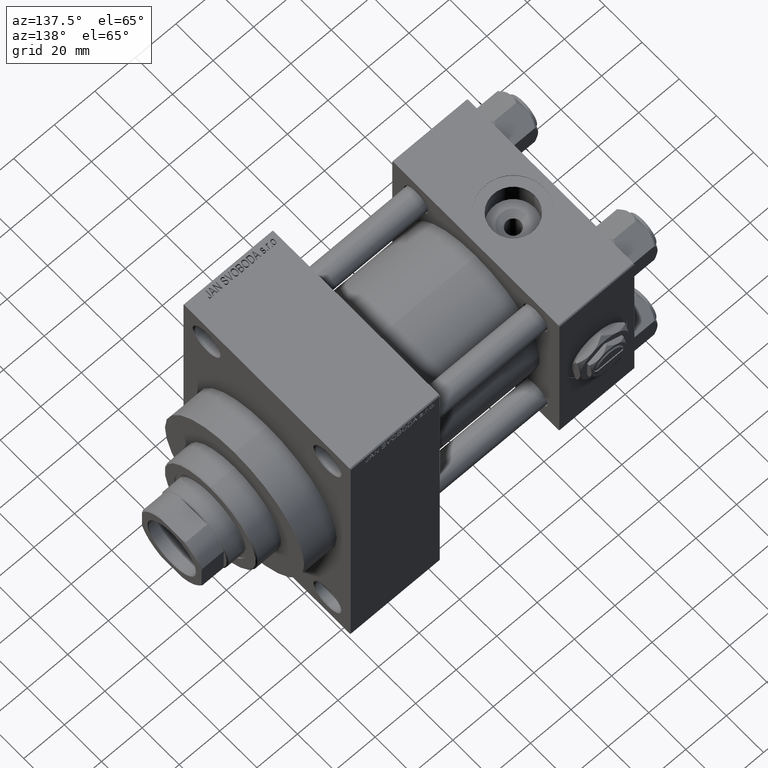
[diagram: clean part render]
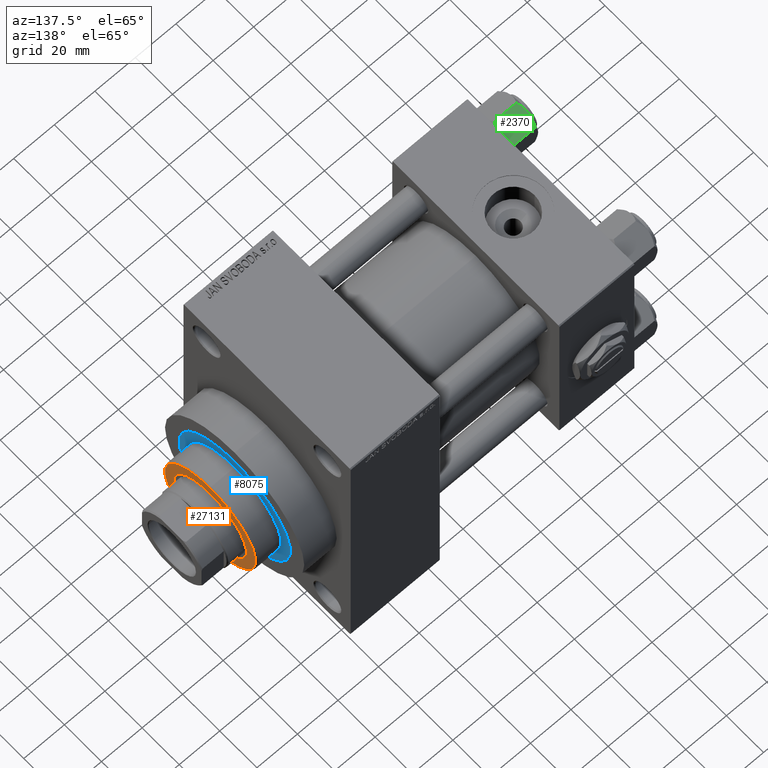
[diagram: same view with three faces highlighted in distinct colors, each labeled with its STEP entity id]
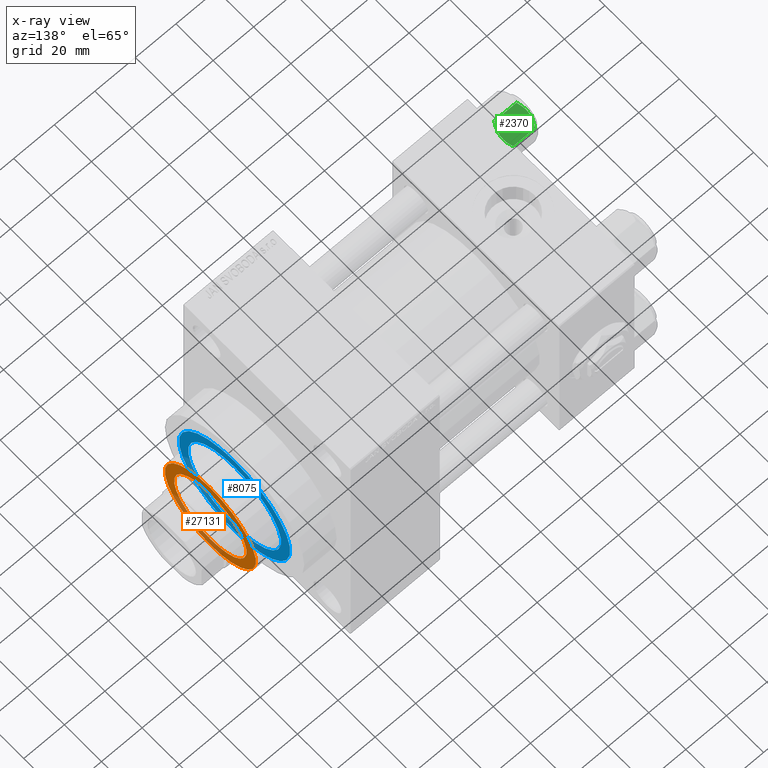
[diagram: x-ray of the same camera — body ghosted, the three highlighted faces saturated]
A machine part, auxiliary view with three faces highlighted in distinct colors.
The next image is the same camera in x-ray (body ghosted, the three faces saturated) — at least one of them is partly hidden behind the body in this view.
Their STEP definitions:

[orange] entity #27131 — the highlighted planar face has unit normal (1, 0, 0).
#3592 = CARTESIAN_POINT ( 'NONE',  ( 0.000000000000000000, 0.000000000000000000, 55.26000000000000512 ) ) ;
#3610 = AXIS2_PLACEMENT_3D ( 'NONE', #23858, #8519, #23610 ) ;
#3824 = CARTESIAN_POINT ( 'NONE',  ( -24.50000000000001066, 0.000000000000000000, 55.26000000000000512 ) ) ;
#4219 = AXIS2_PLACEMENT_3D ( 'NONE', #18906, #41692, #41938 ) ;
#6589 = CARTESIAN_POINT ( 'NONE',  ( -19.50000000000000000, 2.388061258337338939E-15, 55.26000000000000512 ) ) ;
#7252 = AXIS2_PLACEMENT_3D ( 'NONE', #3592, #7543, #41214 ) ;
#7543 = DIRECTION ( 'NONE',  ( 0.000000000000000000, 0.000000000000000000, 1.000000000000000000 ) ) ;
#8519 = DIRECTION ( 'NONE',  ( 0.000000000000000000, 0.000000000000000000, 1.000000000000000000 ) ) ;
#8767 = PLANE ( 'NONE',  #3610 ) ;
#10382 = CIRCLE ( 'NONE', #7252, 19.50000000000000000 ) ;
#12004 = CARTESIAN_POINT ( 'NONE',  ( 24.50000000000001066, 3.031000827889700044E-15, 55.26000000000000512 ) ) ;
#15473 = AXIS2_PLACEMENT_3D ( 'NONE', #19302, #34395, #30925 ) ;
#16102 = EDGE_CURVE ( 'NONE', #42776, #36290, #40468, .T. ) ;
#16723 = DIRECTION ( 'NONE',  ( 1.000000000000000000, 0.000000000000000000, 0.000000000000000000 ) ) ;
#17956 = EDGE_LOOP ( 'NONE', ( #47807, #36096 ) ) ;
#18906 = CARTESIAN_POINT ( 'NONE',  ( 0.000000000000000000, 0.000000000000000000, 55.26000000000000512 ) ) ;
#19269 = EDGE_CURVE ( 'NONE', #45240, #45416, #10382, .T. ) ;
#19302 = CARTESIAN_POINT ( 'NONE',  ( 0.000000000000000000, 0.000000000000000000, 55.26000000000000512 ) ) ;
#19723 = CARTESIAN_POINT ( 'NONE',  ( 19.50000000000000000, 0.000000000000000000, 55.26000000000000512 ) ) ;
#20192 = CARTESIAN_POINT ( 'NONE',  ( 0.000000000000000000, 0.000000000000000000, 55.26000000000000512 ) ) ;
#21484 = AXIS2_PLACEMENT_3D ( 'NONE', #20192, #43453, #16723 ) ;
#23192 = EDGE_CURVE ( 'NONE', #36290, #42776, #46882, .T. ) ;
#23375 = FACE_BOUND ( 'NONE', #17956, .T. ) ;
#23610 = DIRECTION ( 'NONE',  ( 1.000000000000000000, 0.000000000000000000, -0.000000000000000000 ) ) ;
#23858 = CARTESIAN_POINT ( 'NONE',  ( 0.000000000000000000, 0.000000000000000000, 55.26000000000000512 ) ) ;
#27131 = ADVANCED_FACE ( 'NONE', ( #23375, #34753 ), #8767, .T. ) ;
#27672 = EDGE_CURVE ( 'NONE', #45416, #45240, #45511, .T. ) ;
#30925 = DIRECTION ( 'NONE',  ( 1.000000000000000000, 0.000000000000000000, 0.000000000000000000 ) ) ;
#32969 = ORIENTED_EDGE ( 'NONE', *, *, #23192, .T. ) ;
#34395 = DIRECTION ( 'NONE',  ( 0.000000000000000000, 0.000000000000000000, 1.000000000000000000 ) ) ;
#34753 = FACE_OUTER_BOUND ( 'NONE', #45489, .T. ) ;
#35366 = ORIENTED_EDGE ( 'NONE', *, *, #16102, .T. ) ;
#36096 = ORIENTED_EDGE ( 'NONE', *, *, #27672, .F. ) ;
#36290 = VERTEX_POINT ( 'NONE', #3824 ) ;
#40468 = CIRCLE ( 'NONE', #21484, 24.50000000000001066 ) ;
#41214 = DIRECTION ( 'NONE',  ( 1.000000000000000000, 0.000000000000000000, 0.000000000000000000 ) ) ;
#41692 = DIRECTION ( 'NONE',  ( 0.000000000000000000, 0.000000000000000000, 1.000000000000000000 ) ) ;
#41938 = DIRECTION ( 'NONE',  ( 1.000000000000000000, 0.000000000000000000, 0.000000000000000000 ) ) ;
#42776 = VERTEX_POINT ( 'NONE', #12004 ) ;
#43453 = DIRECTION ( 'NONE',  ( 0.000000000000000000, 0.000000000000000000, 1.000000000000000000 ) ) ;
#45240 = VERTEX_POINT ( 'NONE', #19723 ) ;
#45416 = VERTEX_POINT ( 'NONE', #6589 ) ;
#45489 = EDGE_LOOP ( 'NONE', ( #32969, #35366 ) ) ;
#45511 = CIRCLE ( 'NONE', #15473, 19.50000000000000000 ) ;
#46882 = CIRCLE ( 'NONE', #4219, 24.50000000000001066 ) ;
#47807 = ORIENTED_EDGE ( 'NONE', *, *, #19269, .F. ) ;

[blue] entity #8075 — the highlighted planar face has unit normal (1, 0, 0).
#2538 = VERTEX_POINT ( 'NONE', #26071 ) ;
#3889 = AXIS2_PLACEMENT_3D ( 'NONE', #32152, #12867, #42847 ) ;
#5727 = ORIENTED_EDGE ( 'NONE', *, *, #39846, .T. ) ;
#6261 = DIRECTION ( 'NONE',  ( 0.000000000000000000, 0.000000000000000000, 1.000000000000000000 ) ) ;
#6754 = FACE_OUTER_BOUND ( 'NONE', #40812, .T. ) ;
#7439 = DIRECTION ( 'NONE',  ( 0.000000000000000000, 0.000000000000000000, 1.000000000000000000 ) ) ;
#8075 = ADVANCED_FACE ( 'NONE', ( #10204, #6754 ), #10707, .T. ) ;
#9388 = VERTEX_POINT ( 'NONE', #20098 ) ;
#10204 = FACE_BOUND ( 'NONE', #41166, .T. ) ;
#10707 = PLANE ( 'NONE',  #45346 ) ;
#11306 = CIRCLE ( 'NONE', #47665, 25.00000000000000000 ) ;
#12867 = DIRECTION ( 'NONE',  ( 0.000000000000000000, 0.000000000000000000, 1.000000000000000000 ) ) ;
#13865 = AXIS2_PLACEMENT_3D ( 'NONE', #18810, #7439, #29206 ) ;
#14792 = CIRCLE ( 'NONE', #40887, 25.00000000000000000 ) ;
#15181 = CARTESIAN_POINT ( 'NONE',  ( -25.00000000000000000, 0.000000000000000000, 43.25999999999999801 ) ) ;
#18810 = CARTESIAN_POINT ( 'NONE',  ( 0.000000000000000000, 0.000000000000000000, 43.25999999999999801 ) ) ;
#20098 = CARTESIAN_POINT ( 'NONE',  ( 30.00000000000000000, 3.673940397442059178E-15, 43.25999999999999801 ) ) ;
#20253 = CARTESIAN_POINT ( 'NONE',  ( 0.000000000000000000, 0.000000000000000000, 43.25999999999999801 ) ) ;
#21355 = DIRECTION ( 'NONE',  ( 1.000000000000000000, 0.000000000000000000, -0.000000000000000000 ) ) ;
#21624 = EDGE_CURVE ( 'NONE', #42336, #47977, #11306, .T. ) ;
#23271 = ORIENTED_EDGE ( 'NONE', *, *, #35024, .F. ) ;
#25297 = CARTESIAN_POINT ( 'NONE',  ( 0.000000000000000000, 0.000000000000000000, 43.25999999999999801 ) ) ;
#26071 = CARTESIAN_POINT ( 'NONE',  ( -30.00000000000000000, 0.000000000000000000, 43.25999999999999801 ) ) ;
#27423 = DIRECTION ( 'NONE',  ( 0.000000000000000000, 0.000000000000000000, 1.000000000000000000 ) ) ;
#27575 = EDGE_CURVE ( 'NONE', #2538, #9388, #37586, .T. ) ;
#28737 = DIRECTION ( 'NONE',  ( 0.000000000000000000, 0.000000000000000000, 1.000000000000000000 ) ) ;
#29206 = DIRECTION ( 'NONE',  ( 1.000000000000000000, 0.000000000000000000, 0.000000000000000000 ) ) ;
#31372 = DIRECTION ( 'NONE',  ( 1.000000000000000000, 0.000000000000000000, 0.000000000000000000 ) ) ;
#32152 = CARTESIAN_POINT ( 'NONE',  ( 0.000000000000000000, 0.000000000000000000, 43.25999999999999801 ) ) ;
#32441 = CARTESIAN_POINT ( 'NONE',  ( 0.000000000000000000, 0.000000000000000000, 43.25999999999999801 ) ) ;
#32690 = DIRECTION ( 'NONE',  ( 1.000000000000000000, 0.000000000000000000, 0.000000000000000000 ) ) ;
#35024 = EDGE_CURVE ( 'NONE', #47977, #42336, #14792, .T. ) ;
#37586 = CIRCLE ( 'NONE', #13865, 30.00000000000000000 ) ;
#39415 = ORIENTED_EDGE ( 'NONE', *, *, #27575, .T. ) ;
#39846 = EDGE_CURVE ( 'NONE', #9388, #2538, #40235, .T. ) ;
#40235 = CIRCLE ( 'NONE', #3889, 30.00000000000000000 ) ;
#40812 = EDGE_LOOP ( 'NONE', ( #39415, #5727 ) ) ;
#40887 = AXIS2_PLACEMENT_3D ( 'NONE', #20253, #27423, #31372 ) ;
#41166 = EDGE_LOOP ( 'NONE', ( #23271, #42467 ) ) ;
#42336 = VERTEX_POINT ( 'NONE', #45091 ) ;
#42467 = ORIENTED_EDGE ( 'NONE', *, *, #21624, .F. ) ;
#42847 = DIRECTION ( 'NONE',  ( 1.000000000000000000, 0.000000000000000000, 0.000000000000000000 ) ) ;
#45091 = CARTESIAN_POINT ( 'NONE',  ( 25.00000000000000000, 3.061616997868383043E-15, 43.25999999999999801 ) ) ;
#45346 = AXIS2_PLACEMENT_3D ( 'NONE', #25297, #6261, #21355 ) ;
#47665 = AXIS2_PLACEMENT_3D ( 'NONE', #32441, #28737, #32690 ) ;
#47977 = VERTEX_POINT ( 'NONE', #15181 ) ;

[green] entity #2370 — the highlighted planar face has unit normal (0, -0.5, -0.866).
#719 = VERTEX_POINT ( 'NONE', #40437 ) ;
#1973 = CARTESIAN_POINT ( 'NONE',  ( -5.810000000000000497, -10.06321519197517844, -12.44321519197518633 ) ) ;
#2370 = ADVANCED_FACE ( 'NONE', ( #31304 ), #30585, .F. ) ;
#2711 = CARTESIAN_POINT ( 'NONE',  ( -7.455303369716809847, -7.213466161761383333, -13.69973261901326644 ) ) ;
#2834 = CARTESIAN_POINT ( 'NONE',  ( -9.716999946243698005, -3.296092779912219939, -13.84547602999602667 ) ) ;
#3190 = AXIS2_PLACEMENT_3D ( 'NONE', #35270, #12026, #46414 ) ;
#3326 = CARTESIAN_POINT ( 'NONE',  ( -11.61999999999999922, 6.270720075409452187E-15, -1.556784808024810562 ) ) ;
#3609 = CARTESIAN_POINT ( 'NONE',  ( -5.810000000000000497, -10.06321519197517844, -1.556784808024813893 ) ) ;
#5906 = EDGE_LOOP ( 'NONE', ( #26477, #23543, #22035, #32118, #12547, #19003 ) ) ;
#5960 = EDGE_CURVE ( 'NONE', #719, #43850, #46702, .T. ) ;
#6410 = CARTESIAN_POINT ( 'NONE',  ( -11.61999999999999922, 6.270720075409452187E-15, -1.556784808024810562 ) ) ;
#6437 = CARTESIAN_POINT ( 'NONE',  ( -8.715000000000006963, -5.031607595987586556, -14.00000000000000000 ) ) ;
#10176 = VERTEX_POINT ( 'NONE', #41918 ) ;
#12026 = DIRECTION ( 'NONE',  ( 0.8660254037844390407, 0.4999999999999995004, 0.000000000000000000 ) ) ;
#12547 = ORIENTED_EDGE ( 'NONE', *, *, #43111, .F. ) ;
#12718 = EDGE_CURVE ( 'NONE', #30081, #719, #32354, .T. ) ;
#12873 = CARTESIAN_POINT ( 'NONE',  ( -6.265545725125283738, -9.274186850887380373, -12.89876091710046779 ) ) ;
#13235 = CARTESIAN_POINT ( 'NONE',  ( -11.16498164529022219, -0.7881149087337223635, -12.89823354668505040 ) ) ;
#14596 = CARTESIAN_POINT ( 'NONE',  ( -11.61999999999999922, 6.288644352490894150E-15, -14.00000000000000000 ) ) ;
#15162 = B_SPLINE_CURVE_WITH_KNOTS ( 'NONE', 3,
 ( #1973, #12873, #27966, #2711, #17805, #48514, #18049, #6437 ),
 .UNSPECIFIED., .F., .F.,
 ( 4, 2, 2, 4 ),
 ( 2.544312114906334931E-07, 0.003011550106433543393, 0.004517197944044570521, 0.006022845781655596781 ),
 .UNSPECIFIED. ) ;
#15524 = EDGE_CURVE ( 'NONE', #40910, #10176, #15162, .T. ) ;
#17226 = CARTESIAN_POINT ( 'NONE',  ( -5.810000000000000497, -10.06321519197517844, -12.44321519197518633 ) ) ;
#17805 = CARTESIAN_POINT ( 'NONE',  ( -7.700834831386346835, -6.788193195293090731, -13.80960203119266438 ) ) ;
#18049 = CARTESIAN_POINT ( 'NONE',  ( -8.460569896449619876, -5.472293462311856871, -14.00000000000000888 ) ) ;
#18415 = CARTESIAN_POINT ( 'NONE',  ( -8.969430103550386946, -4.590921729663310025, 6.662949392646161370E-15 ) ) ;
#18658 = CARTESIAN_POINT ( 'NONE',  ( -9.227666995912100489, -4.143642311704120118, -0.03994118060690279165 ) ) ;
#19003 = ORIENTED_EDGE ( 'NONE', *, *, #48674, .F. ) ;
#22035 = ORIENTED_EDGE ( 'NONE', *, *, #5960, .F. ) ;
#22169 = CARTESIAN_POINT ( 'NONE',  ( -7.713000053756304375, -6.767122412062951398, -0.1545239700039803266 ) ) ;
#22374 = CARTESIAN_POINT ( 'NONE',  ( -8.715000000000006963, -5.031607595987586556, 0.000000000000000000 ) ) ;
#22609 = CARTESIAN_POINT ( 'NONE',  ( -5.810000000000000497, -10.06321519197517844, -14.00000000000000000 ) ) ;
#22850 = LINE ( 'NONE', #22609, #36869 ) ;
#23105 = DIRECTION ( 'NONE',  ( -0.000000000000000000, -0.000000000000000000, 1.000000000000000000 ) ) ;
#23543 = ORIENTED_EDGE ( 'NONE', *, *, #33497, .T. ) ;
#24505 = VECTOR ( 'NONE', #29692, 1000.000000000000000 ) ;
#25093 = CARTESIAN_POINT ( 'NONE',  ( -9.220295946303428636, -4.156409344131446026, -14.00000000000000711 ) ) ;
#25225 = LINE ( 'NONE', #14596, #24505 ) ;
#26318 = CARTESIAN_POINT ( 'NONE',  ( -10.69859855102500923, -1.595914123792257611, -0.7141438259524607313 ) ) ;
#26477 = ORIENTED_EDGE ( 'NONE', *, *, #15524, .F. ) ;
#27966 = CARTESIAN_POINT ( 'NONE',  ( -6.731401448974989599, -8.467301068182909063, -13.28585617404753272 ) ) ;
#29692 = DIRECTION ( 'NONE',  ( -0.000000000000000000, -0.000000000000000000, 1.000000000000000000 ) ) ;
#30081 = VERTEX_POINT ( 'NONE', #6410 ) ;
#30585 = PLANE ( 'NONE',  #3190 ) ;
#31221 = CARTESIAN_POINT ( 'NONE',  ( -6.733375043383495573, -8.463882702393842550, -0.7114554706434480513 ) ) ;
#31304 = FACE_OUTER_BOUND ( 'NONE', #5906, .T. ) ;
#32118 = ORIENTED_EDGE ( 'NONE', *, *, #12718, .F. ) ;
#32279 = CARTESIAN_POINT ( 'NONE',  ( -11.61999999999999922, 6.270720075510426383E-15, -12.44321519197518988 ) ) ;
#32354 = B_SPLINE_CURVE_WITH_KNOTS ( 'NONE', 3,
 ( #3326, #33987, #26318, #37708, #37948, #18658, #18415, #22374 ),
 .UNSPECIFIED., .F., .F.,
 ( 4, 2, 2, 4 ),
 ( 2.544312114893457383E-07, 0.003011550106433538623, 0.004517197944044561847, 0.006022845781655586372 ),
 .UNSPECIFIED. ) ;
#33497 = EDGE_CURVE ( 'NONE', #40910, #43850, #22850, .T. ) ;
#33545 = CARTESIAN_POINT ( 'NONE',  ( -8.715000000000006963, -5.031607595987586556, 0.000000000000000000 ) ) ;
#33591 = CARTESIAN_POINT ( 'NONE',  ( -11.61999999999999922, 6.270720075510426383E-15, -12.44321519197518988 ) ) ;
#33987 = CARTESIAN_POINT ( 'NONE',  ( -11.16445427487471420, -0.7890283410877914072, -1.101239082899528432 ) ) ;
#34945 = CARTESIAN_POINT ( 'NONE',  ( -8.209704053696567527, -5.906805847843720869, 6.159623592433269699E-15 ) ) ;
#35270 = CARTESIAN_POINT ( 'NONE',  ( -5.810000000000000497, -10.06321519197517844, -14.00000000000000000 ) ) ;
#36242 = CARTESIAN_POINT ( 'NONE',  ( -10.69662495661650148, -1.599332489581326344, -13.28854452935655317 ) ) ;
#36869 = VECTOR ( 'NONE', #23105, 1000.000000000000000 ) ;
#36982 = CARTESIAN_POINT ( 'NONE',  ( -8.715000000000006963, -5.031607595987586556, -14.00000000000000000 ) ) ;
#37008 = CARTESIAN_POINT ( 'NONE',  ( -6.265018354709776638, -9.275100283241451748, -1.101766453314952043 ) ) ;
#37708 = CARTESIAN_POINT ( 'NONE',  ( -9.974696630283190757, -2.849749030213787115, -0.3002673809867329457 ) ) ;
#37948 = CARTESIAN_POINT ( 'NONE',  ( -9.729165168613654657, -3.275021996682076608, -0.1903979688073365595 ) ) ;
#40437 = CARTESIAN_POINT ( 'NONE',  ( -8.715000000000006963, -5.031607595987586556, 0.000000000000000000 ) ) ;
#40910 = VERTEX_POINT ( 'NONE', #17226 ) ;
#41918 = CARTESIAN_POINT ( 'NONE',  ( -8.715000000000006963, -5.031607595987586556, -14.00000000000000000 ) ) ;
#43111 = EDGE_CURVE ( 'NONE', #44226, #30081, #25225, .T. ) ;
#43850 = VERTEX_POINT ( 'NONE', #48771 ) ;
#44226 = VERTEX_POINT ( 'NONE', #33591 ) ;
#46414 = DIRECTION ( 'NONE',  ( -0.4999999999999994449, 0.8660254037844389297, 0.000000000000000000 ) ) ;
#46702 = B_SPLINE_CURVE_WITH_KNOTS ( 'NONE', 3,
 ( #33545, #34945, #22169, #31221, #37008, #3609 ),
 .UNSPECIFIED., .F., .F.,
 ( 4, 2, 4 ),
 ( 0.006022845781655586372, 0.009013049135303635023, 0.01200325248895168367 ),
 .UNSPECIFIED. ) ;
#48146 = B_SPLINE_CURVE_WITH_KNOTS ( 'NONE', 3,
 ( #36982, #25093, #2834, #36242, #13235, #32279 ),
 .UNSPECIFIED., .F., .F.,
 ( 4, 2, 4 ),
 ( 0.006022845781655596781, 0.009013049135303641962, 0.01200325248895168714 ),
 .UNSPECIFIED. ) ;
#48514 = CARTESIAN_POINT ( 'NONE',  ( -8.202333004087902779, -5.919572880271047666, -13.96005881939309745 ) ) ;
#48674 = EDGE_CURVE ( 'NONE', #10176, #44226, #48146, .T. ) ;
#48771 = CARTESIAN_POINT ( 'NONE',  ( -5.810000000000000497, -10.06321519197517844, -1.556784808024813893 ) ) ;